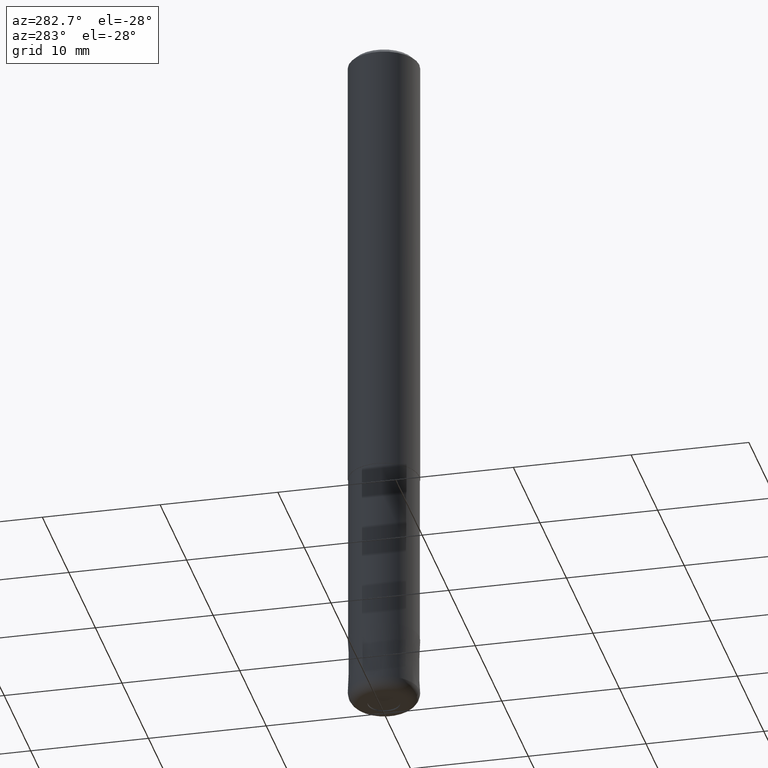
[diagram: clean part render]
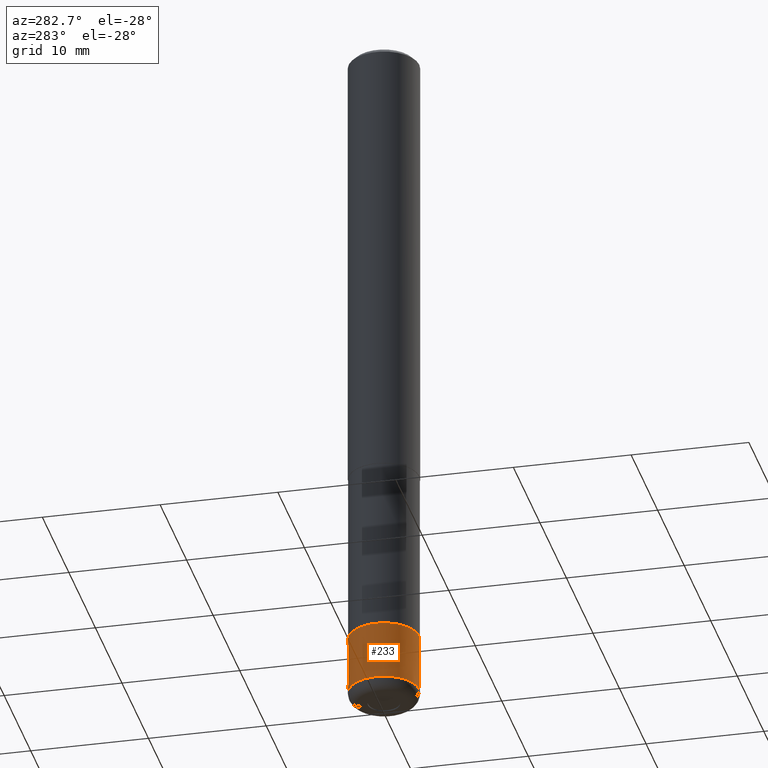
[diagram: same view with one face highlighted and labeled with its STEP entity id]
A machine part, auxiliary view. The second image highlights one B-rep face of the part: STEP entity #233.
In plain terms, the highlighted conical surface has half-angle 0.001 deg.
Its self-contained STEP definition (entity closure, byte-faithful):
#129=VERTEX_POINT('',#316);
#163=EDGE_CURVE('',#239,#273,#358,.T.);
#195=EDGE_CURVE('',#239,#129,#396,.T.);
#199=VERTEX_POINT('',#400);
#219=EDGE_CURVE('',#273,#199,#422,.T.);
#233=ADVANCED_FACE('',(#436),#437,.T.);
#239=VERTEX_POINT('',#444);
#273=VERTEX_POINT('',#484);
#275=EDGE_CURVE('',#199,#129,#486,.T.);
#316=CARTESIAN_POINT('',(0.0,3.0,-59.0));
#358=LINE('',#576,#577);
#396=CIRCLE('',#625,3.0);
#400=CARTESIAN_POINT('',(0.0,2.9999,-54.0));
#422=CIRCLE('',#659,2.9999);
#436=FACE_OUTER_BOUND('',#675,.T.);
#437=CONICAL_SURFACE('',#676,2.99995,1.99999999973755E-005);
#444=CARTESIAN_POINT('',(3.67381906146713E-016,-3.0,-59.0));
#484=CARTESIAN_POINT('',(3.67369660083175E-016,-2.9999,-54.0));
#486=LINE('',#734,#735);
#576=CARTESIAN_POINT('',(3.67375783114944E-016,-2.99995,-56.5));
#577=VECTOR('',#814,1.0);
#625=AXIS2_PLACEMENT_3D('',#872,#873,#874);
#659=AXIS2_PLACEMENT_3D('',#906,#907,#908);
#675=EDGE_LOOP('',(#915,#916,#917,#918));
#676=AXIS2_PLACEMENT_3D('',#919,#920,#921);
#734=CARTESIAN_POINT('',(-3.67375783114944E-016,2.99995,-56.5));
#735=VECTOR('',#988,1.0);
#814=DIRECTION('',(-2.44921270716008E-021,1.99999999960422E-005,0.9999999998));
#872=CARTESIAN_POINT('',(0.0,0.0,-59.0));
#873=DIRECTION('',(0.0,0.0,-1.0));
#874=DIRECTION('',(0.0,1.0,0.0));
#906=CARTESIAN_POINT('',(0.0,0.0,-54.0));
#907=DIRECTION('',(0.0,0.0,-1.0));
#908=DIRECTION('',(0.0,1.0,0.0));
#915=ORIENTED_EDGE('',*,*,#275,.T.);
#916=ORIENTED_EDGE('',*,*,#195,.F.);
#917=ORIENTED_EDGE('',*,*,#163,.T.);
#918=ORIENTED_EDGE('',*,*,#219,.T.);
#919=CARTESIAN_POINT('',(0.0,0.0,-56.5));
#920=DIRECTION('',(0.0,-0.0,-1.0));
#921=DIRECTION('',(0.0,1.0,0.0));
#988=DIRECTION('',(-2.44921270716008E-021,1.99999999960422E-005,-0.9999999998));